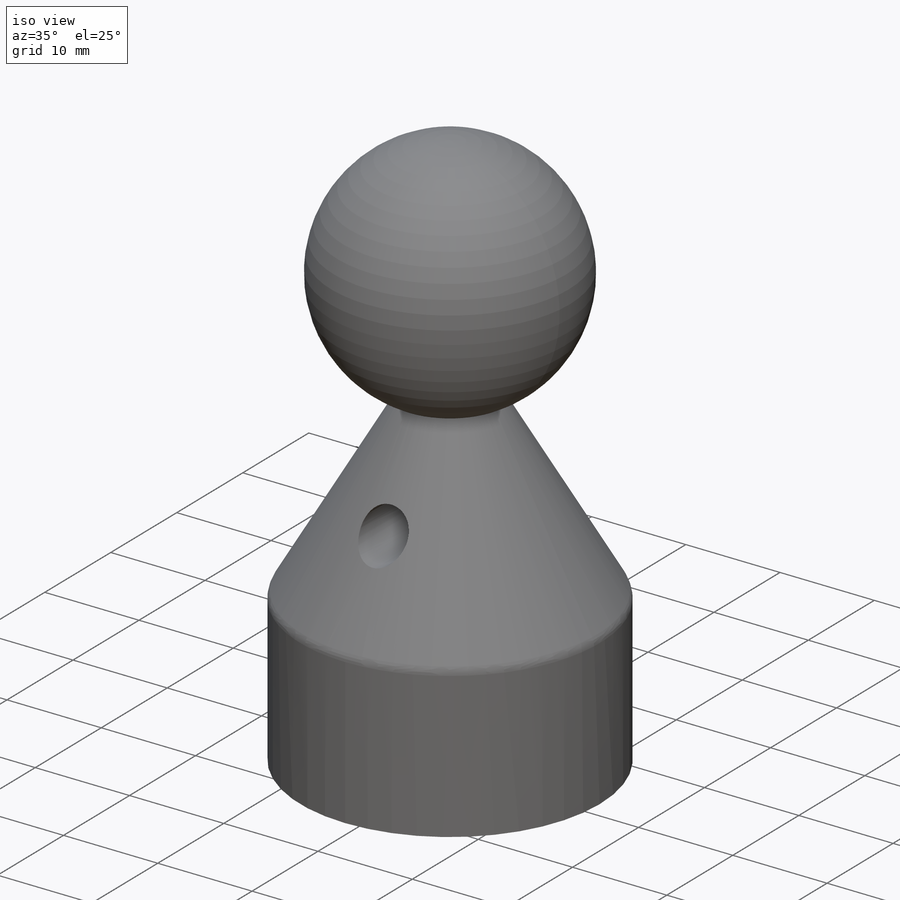
[diagram: iso view]
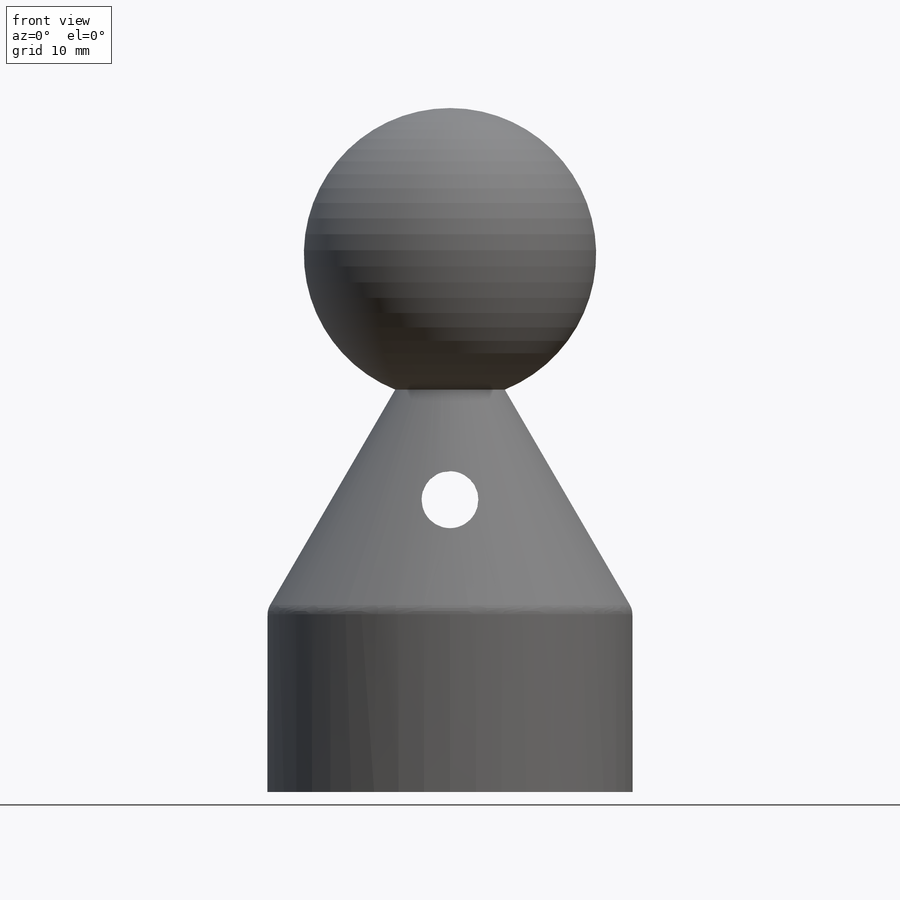
[diagram: front view]
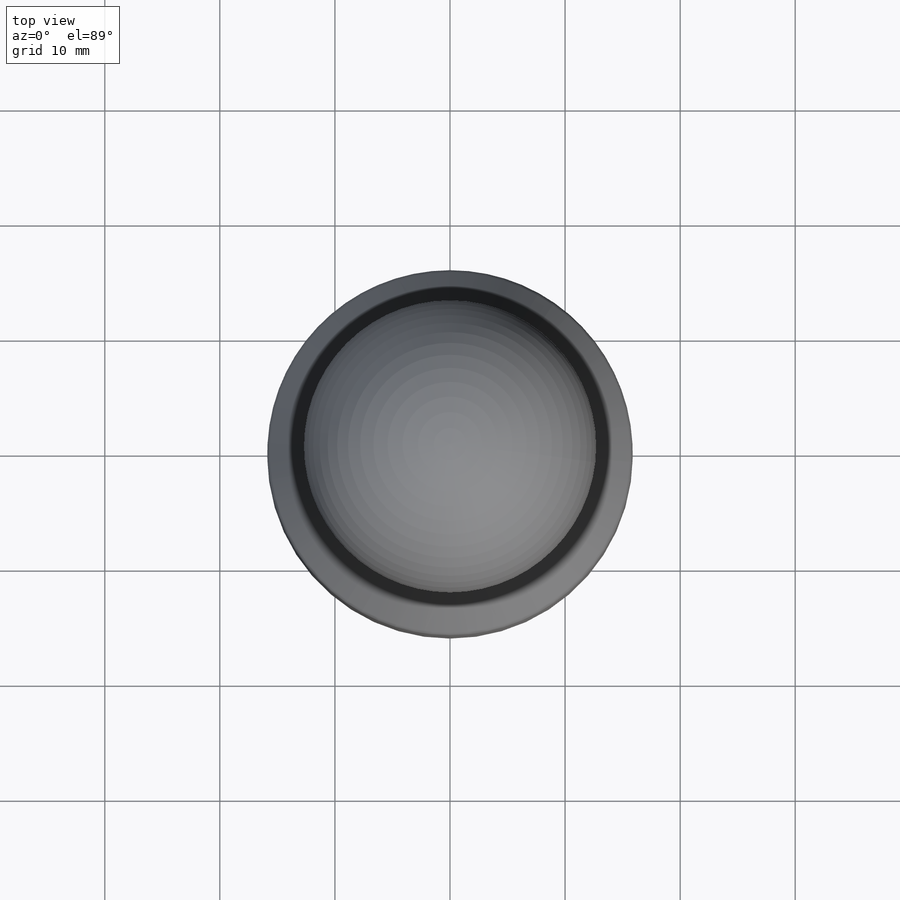
[diagram: top view]
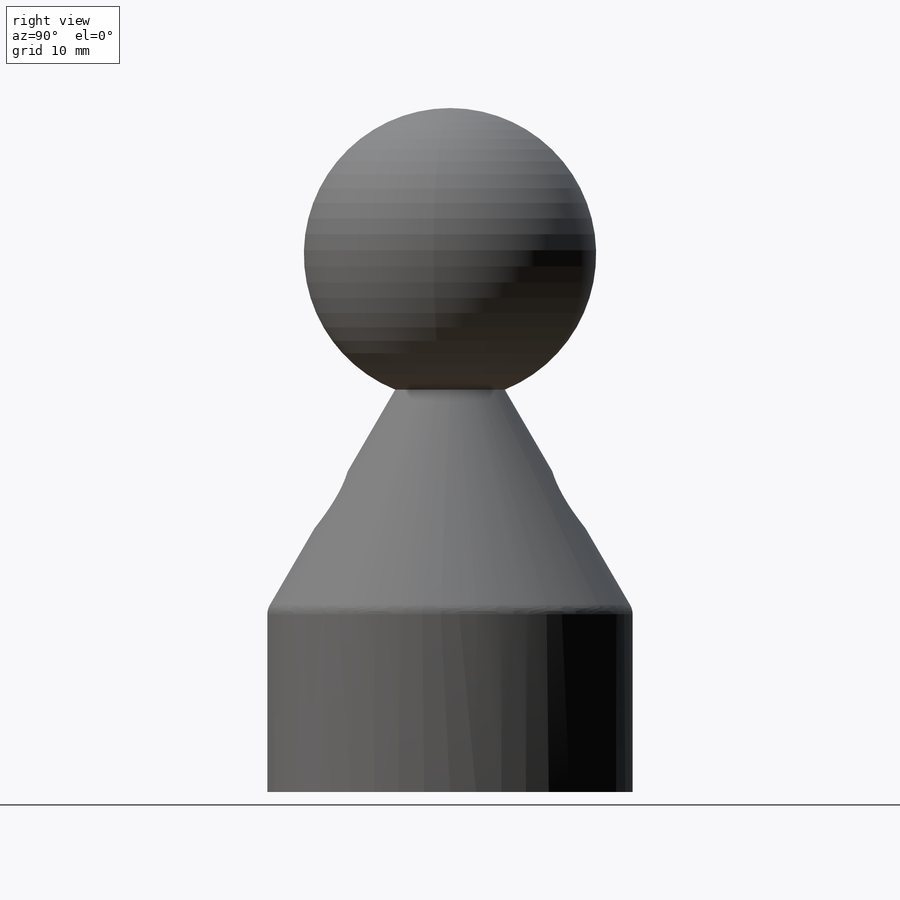
[diagram: right view]
SOLIDWORKS PART (.sldprt)
format: sldprt  version: not decoded by parser v0  size: 194,048 bytes
history: native  units: mm
features: plane x3, sketch x2, chamfer x2, material x1, revolve x1, cut_extrude x1, fillet x1 + 2 further entries (+9 scaffold rows collapsed)
feature tree (22):
  scaffold x9  (default folders/planes/origin — collapsed)
  material  "Material <not specified>"
  plane  "Plane X-Y"
  plane  "Plane X-Z"
  plane  "Plane Y-Z"
  "Axis - Y"
  "Axis - Z"
  sketch  "Sketch1"  dims[c1.D1=25.4mm c1.D2=59.436mm c1.D3=18.415mm c1.D4=31.75mm c1.D5=0.4699mm c1.D6=8.3312mm c1.D7=59.436mm c2.D7=59.0deg c2.D8=28.575mm c2.D9=15.875mm c2.D10=9.525mm]
  revolve  "Revolve1"  Angle=360deg
  sketch  "Sketch2"  dims[D1=4.953mm D2=25.4mm]
  cut_extrude  "Cut-Extrude1"  [1 undecoded]
  fillet  "Fillet1"  Radius=1.6002mm
  chamfer  "Chamfer1"  Distance=0.4699mm Angle=45deg
  chamfer  "Chamfer2"  Distance=0.635mm Angle=45deg
decode coverage: 6 of 7 modeling features carry decoded parameters; 2 rows unclassified (native names shown)
note: 1 parameter value undecoded
note: suppression state not decoded; provenance and decode notes live in map.json
